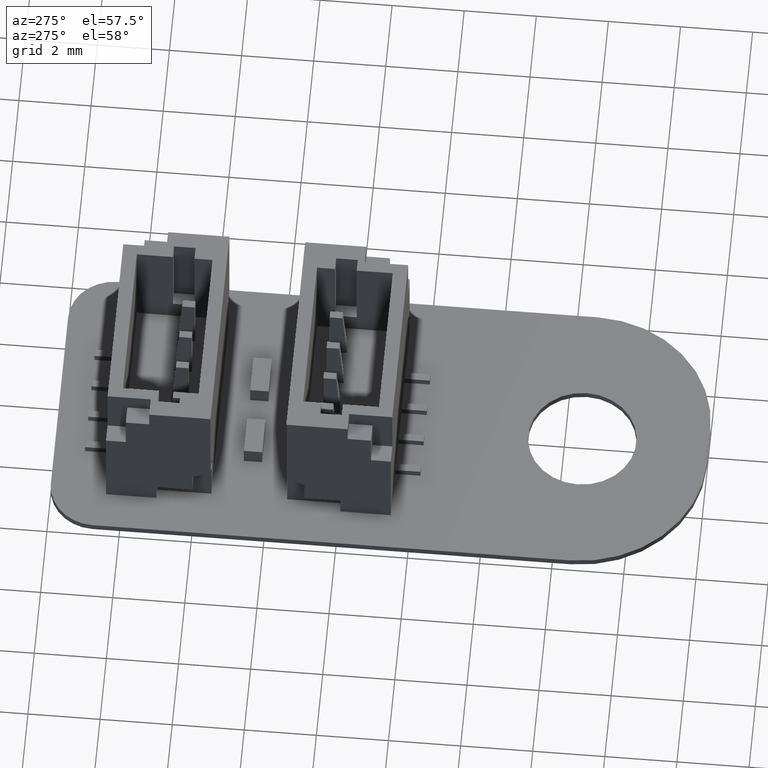
[diagram: clean part render]
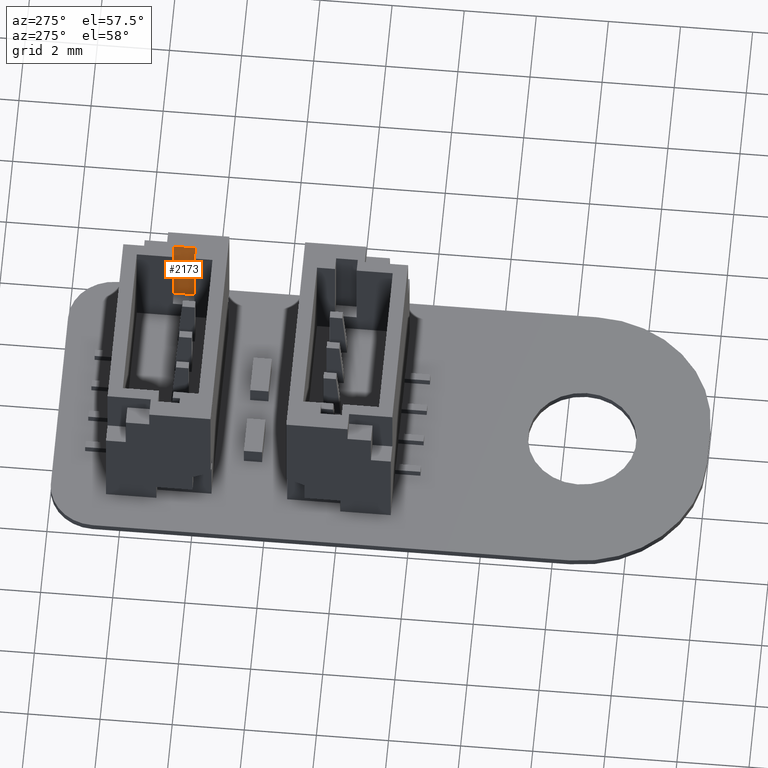
[diagram: same view with one face highlighted and labeled with its STEP entity id]
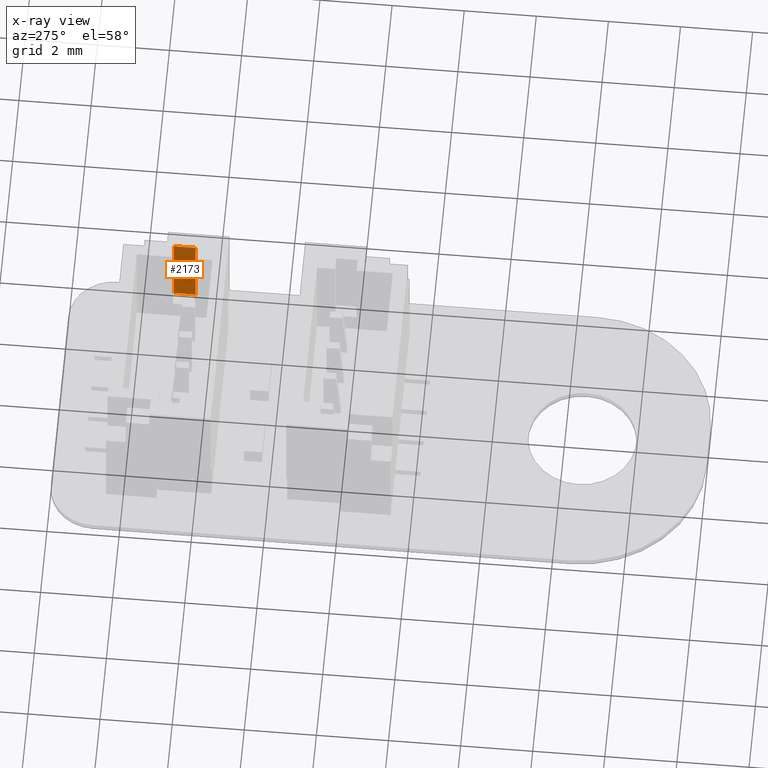
[diagram: x-ray of the same camera — body ghosted, the highlighted face saturated]
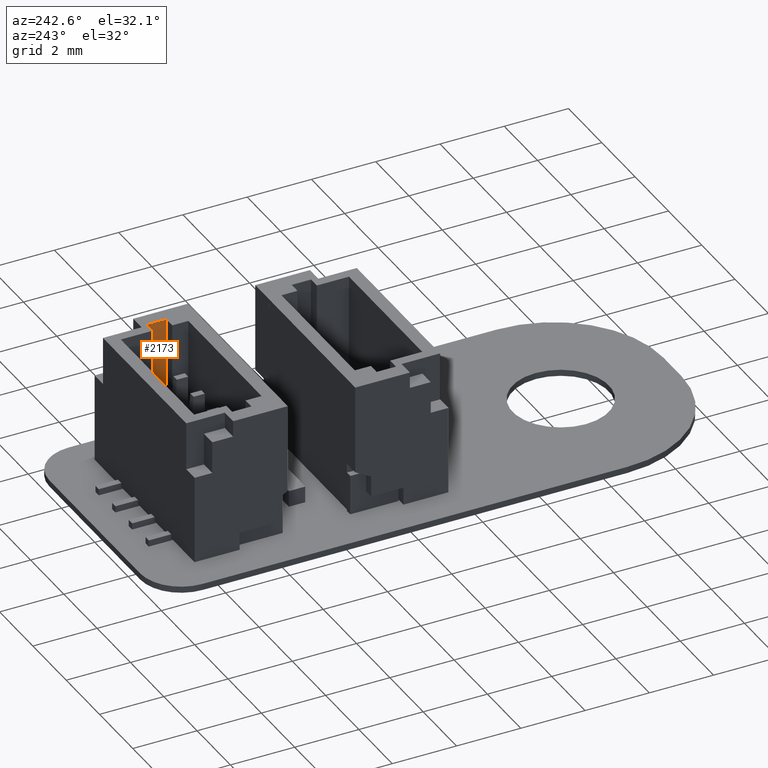
[diagram: same view with one face highlighted and labeled with its STEP entity id]
A machine part, auxiliary view. The second image highlights one B-rep face of the part: STEP entity #2173.
The next image is the same camera in x-ray: the body ghosted, the highlighted face saturated — about 0% of this face is hidden behind the body in this view.
A second angle (auxiliary view) of the same face is appended — the face is thin or edge-on in the first view.
In plain terms, the highlighted planar face has unit normal (1, 0, 0).
Its self-contained STEP definition (entity closure, byte-faithful):
#1181 = VERTEX_POINT('',#1182);
#1182 = CARTESIAN_POINT('',(-2.55,4.25,0.2));
#1263 = VERTEX_POINT('',#1264);
#1264 = CARTESIAN_POINT('',(-2.55,4.25,0.8));
#1270 = EDGE_CURVE('',#1263,#1181,#1271,.T.);
#1271 = LINE('',#1272,#1273);
#1272 = CARTESIAN_POINT('',(-2.55,4.25,0.2));
#1273 = VECTOR('',#1274,1.);
#1274 = DIRECTION('',(-8.428569618866E-15,-0.,-1.));
#2047 = EDGE_CURVE('',#2048,#1181,#2050,.T.);
#2048 = VERTEX_POINT('',#2049);
#2049 = CARTESIAN_POINT('',(-2.55,1.85,0.2));
#2050 = LINE('',#2051,#2052);
#2051 = CARTESIAN_POINT('',(-2.55,1.85,0.2));
#2052 = VECTOR('',#2053,1.);
#2053 = DIRECTION('',(0.,1.,0.));
#2072 = VERTEX_POINT('',#2073);
#2073 = CARTESIAN_POINT('',(-2.55,1.85,0.8));
#2081 = EDGE_CURVE('',#2048,#2072,#2082,.T.);
#2082 = LINE('',#2083,#2084);
#2083 = CARTESIAN_POINT('',(-2.55,1.85,0.2));
#2084 = VECTOR('',#2085,1.);
#2085 = DIRECTION('',(0.,-0.,1.));
#2097 = EDGE_CURVE('',#1263,#2072,#2098,.T.);
#2098 = LINE('',#2099,#2100);
#2099 = CARTESIAN_POINT('',(-2.55,1.85,0.8));
#2100 = VECTOR('',#2101,1.);
#2101 = DIRECTION('',(-4.806297020179E-46,-1.,-6.32198642459E-32));
#2173 = ADVANCED_FACE('',(#2174),#2180,.F.);
#2174 = FACE_BOUND('',#2175,.T.);
#2175 = EDGE_LOOP('',(#2176,#2177,#2178,#2179));
#2176 = ORIENTED_EDGE('',*,*,#2097,.T.);
#2177 = ORIENTED_EDGE('',*,*,#2081,.F.);
#2178 = ORIENTED_EDGE('',*,*,#2047,.T.);
#2179 = ORIENTED_EDGE('',*,*,#1270,.F.);
#2180 = PLANE('',#2181);
#2181 = AXIS2_PLACEMENT_3D('',#2182,#2183,#2184);
#2182 = CARTESIAN_POINT('',(-2.55,1.85,0.2));
#2183 = DIRECTION('',(-1.,1.020425574104E-16,8.428569618866E-15));
#2184 = DIRECTION('',(8.428569618866E-15,0.,1.));